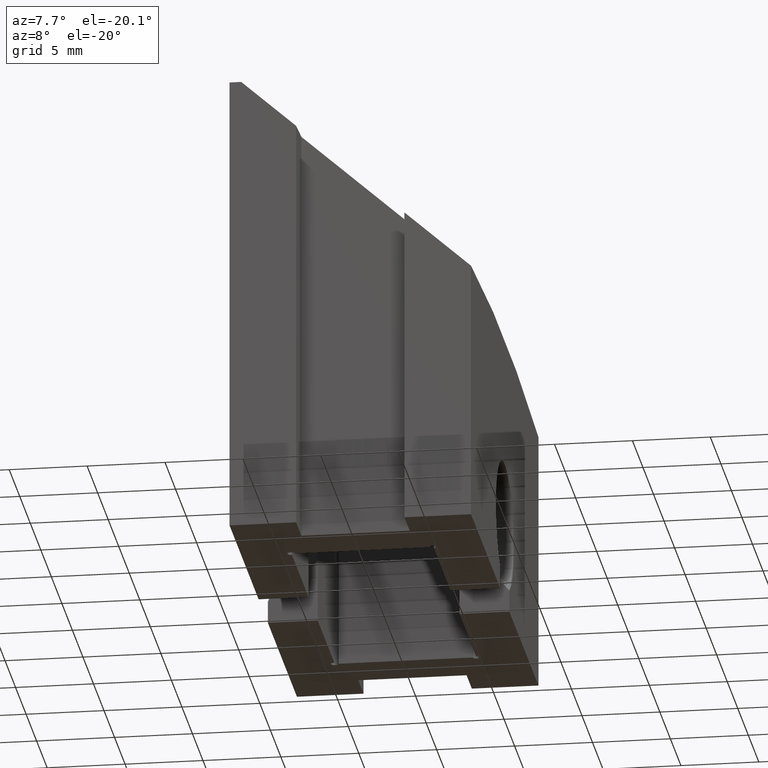
[diagram: clean part render]
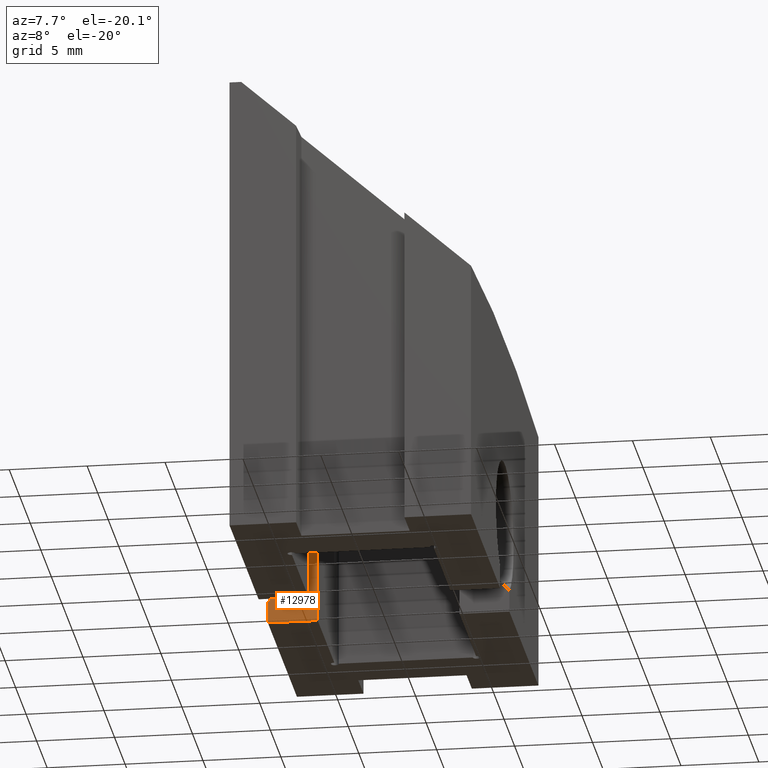
[diagram: same view with one face highlighted and labeled with its STEP entity id]
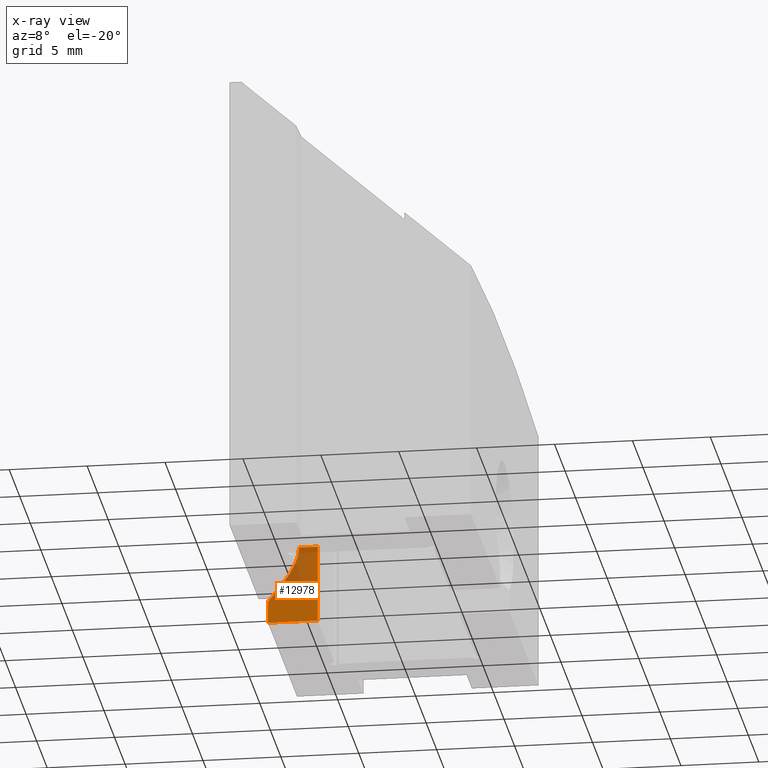
[diagram: x-ray of the same camera — body ghosted, the highlighted face saturated]
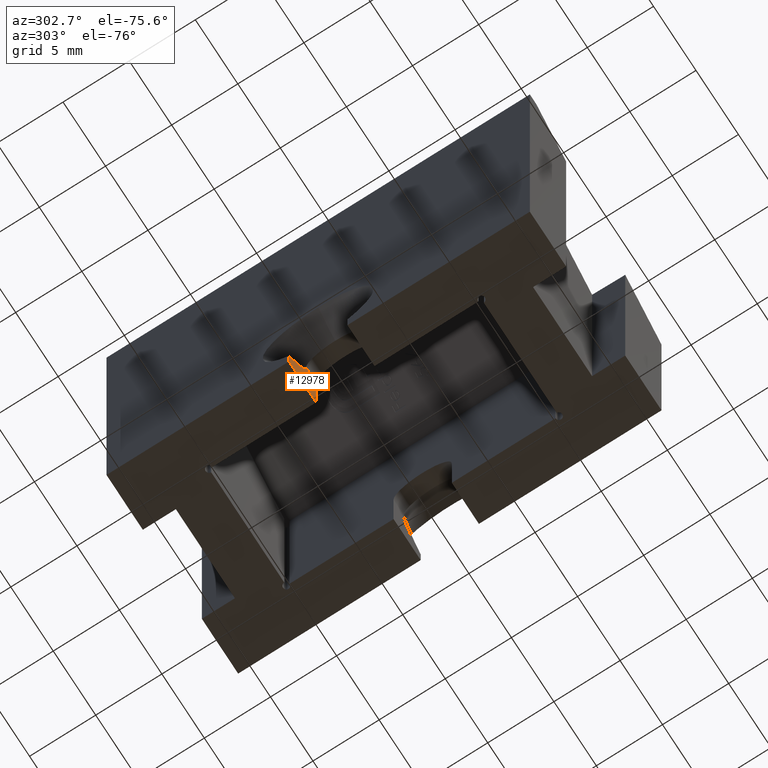
[diagram: same view with one face highlighted and labeled with its STEP entity id]
A machine part, auxiliary view. The second image highlights one B-rep face of the part: STEP entity #12978.
The next image is the same camera in x-ray: the body ghosted, the highlighted face saturated — about 36% of this face is hidden behind the body in this view.
A second angle (auxiliary view) of the same face is appended — the face is thin or edge-on in the first view.
In plain terms, the highlighted planar face has unit normal (0, 1, 0).
Its self-contained STEP definition (entity closure, byte-faithful):
#270 = LINE ( 'NONE', #3435, #6838 ) ;
#1171 = CARTESIAN_POINT ( 'NONE',  ( -7.524119801093321236, 2.200000000000000178, -13.31253993724825335 ) ) ;
#1263 = CARTESIAN_POINT ( 'NONE',  ( -6.281746870756433232, 2.200000000000000178, -11.63411363687131761 ) ) ;
#1577 = CARTESIAN_POINT ( 'NONE',  ( -7.750000000000000000, 2.200000000000000178, -15.00000000000000000 ) ) ;
#1611 = DIRECTION ( 'NONE',  ( 0.000000000000000000, 0.000000000000000000, 1.000000000000000000 ) ) ;
#1627 = VERTEX_POINT ( 'NONE', #4465 ) ;
#2494 = B_SPLINE_CURVE_WITH_KNOTS ( 'NONE', 3,
 ( #10558, #4487, #10657, #3312, #7504, #4358, #1263, #11676, #8453, #12560, #1171, #6475 ),
 .UNSPECIFIED., .F., .F.,
 ( 4, 2, 2, 2, 2, 4 ),
 ( 0.005357371165867761895, 0.005879757674851609703, 0.006402144183835458378, 0.007446917201803153127, 0.008491690219770848744, 0.009536463237738544360 ),
 .UNSPECIFIED. ) ;
#2667 = LINE ( 'NONE', #12492, #5254 ) ;
#3312 = CARTESIAN_POINT ( 'NONE',  ( -5.850878133858335772, 2.200000000000000178, -10.69424044680935992 ) ) ;
#3393 = EDGE_CURVE ( 'NONE', #4014, #13190, #2667, .T. ) ;
#3435 = CARTESIAN_POINT ( 'NONE',  ( 7.750000000000000000, 2.200000000000000178, -15.00000000000000000 ) ) ;
#3546 = EDGE_CURVE ( 'NONE', #7997, #7706, #4124, .T. ) ;
#4014 = VERTEX_POINT ( 'NONE', #12503 ) ;
#4124 = LINE ( 'NONE', #6633, #13155 ) ;
#4235 = DIRECTION ( 'NONE',  ( -0.000000000000000000, -0.000000000000000000, -1.000000000000000000 ) ) ;
#4358 = CARTESIAN_POINT ( 'NONE',  ( -6.107299071504512789, 2.200000000000000178, -11.33533589991925439 ) ) ;
#4362 = DIRECTION ( 'NONE',  ( 0.000000000000000000, -0.000000000000000000, 1.000000000000000000 ) ) ;
#4465 = CARTESIAN_POINT ( 'NONE',  ( -4.549999999999999822, 2.200000000000000178, -15.00000000000000000 ) ) ;
#4487 = CARTESIAN_POINT ( 'NONE',  ( -5.750000000000005329, 2.200000000000000178, -10.17447666026261643 ) ) ;
#4596 = DIRECTION ( 'NONE',  ( -1.000000000000000000, -0.000000000000000000, -0.000000000000000000 ) ) ;
#4614 = ORIENTED_EDGE ( 'NONE', *, *, #3393, .T. ) ;
#4991 = EDGE_CURVE ( 'NONE', #1627, #7997, #7138, .T. ) ;
#5254 = VECTOR ( 'NONE', #4235, 1000.000000000000000 ) ;
#6475 = CARTESIAN_POINT ( 'NONE',  ( -7.750000000000000000, 2.200000000000000178, -13.57770876399966831 ) ) ;
#6633 = CARTESIAN_POINT ( 'NONE',  ( 7.750000000000000000, 2.200000000000000178, -10.00000000000000178 ) ) ;
#6838 = VECTOR ( 'NONE', #7493, 1000.000000000000000 ) ;
#7043 = ORIENTED_EDGE ( 'NONE', *, *, #7242, .T. ) ;
#7138 = LINE ( 'NONE', #9924, #10390 ) ;
#7242 = EDGE_CURVE ( 'NONE', #7706, #4014, #2494, .T. ) ;
#7280 = CARTESIAN_POINT ( 'NONE',  ( 7.750000000000000000, 2.200000000000000178, -15.00000000000000000 ) ) ;
#7493 = DIRECTION ( 'NONE',  ( -1.000000000000000000, -0.000000000000000000, -0.000000000000000000 ) ) ;
#7504 = CARTESIAN_POINT ( 'NONE',  ( -5.907063001687699710, 2.200000000000000622, -10.85824346781600802 ) ) ;
#7706 = VERTEX_POINT ( 'NONE', #8483 ) ;
#7997 = VERTEX_POINT ( 'NONE', #9280 ) ;
#8158 = ORIENTED_EDGE ( 'NONE', *, *, #4991, .T. ) ;
#8185 = ORIENTED_EDGE ( 'NONE', *, *, #11213, .F. ) ;
#8251 = ORIENTED_EDGE ( 'NONE', *, *, #3546, .T. ) ;
#8421 = DIRECTION ( 'NONE',  ( 0.000000000000000000, 1.000000000000000000, 0.000000000000000000 ) ) ;
#8453 = CARTESIAN_POINT ( 'NONE',  ( -6.872674229077954777, 2.199999999999999734, -12.49584175053777280 ) ) ;
#8483 = CARTESIAN_POINT ( 'NONE',  ( -5.750000000000005329, 2.200000000000000178, -10.00000000000000178 ) ) ;
#9280 = CARTESIAN_POINT ( 'NONE',  ( -4.549999999999998934, 2.200000000000000178, -10.00000000000000178 ) ) ;
#9503 = PLANE ( 'NONE',  #12961 ) ;
#9924 = CARTESIAN_POINT ( 'NONE',  ( -4.549999999999999822, 2.200000000000000622, 15.00000000000000000 ) ) ;
#10390 = VECTOR ( 'NONE', #1611, 1000.000000000000000 ) ;
#10558 = CARTESIAN_POINT ( 'NONE',  ( -5.750000000000005329, 2.200000000000000178, -10.00000000000000178 ) ) ;
#10657 = CARTESIAN_POINT ( 'NONE',  ( -5.771499848068248895, 2.199999999999999734, -10.35070099242205899 ) ) ;
#11186 = FACE_OUTER_BOUND ( 'NONE', #12439, .T. ) ;
#11213 = EDGE_CURVE ( 'NONE', #1627, #13190, #270, .T. ) ;
#11676 = CARTESIAN_POINT ( 'NONE',  ( -6.664674798397745015, 2.199999999999999734, -12.21564561969988461 ) ) ;
#12439 = EDGE_LOOP ( 'NONE', ( #8158, #8251, #7043, #4614, #8185 ) ) ;
#12492 = CARTESIAN_POINT ( 'NONE',  ( -7.750000000000000000, 2.200000000000000178, -15.00000000000000000 ) ) ;
#12503 = CARTESIAN_POINT ( 'NONE',  ( -7.750000000000000000, 2.200000000000000178, -13.57770876399966831 ) ) ;
#12560 = CARTESIAN_POINT ( 'NONE',  ( -7.301954824841295988, 2.200000000000000622, -13.04404780166126265 ) ) ;
#12961 = AXIS2_PLACEMENT_3D ( 'NONE', #7280, #8421, #4362 ) ;
#12978 = ADVANCED_FACE ( 'NONE', ( #11186 ), #9503, .F. ) ;
#13155 = VECTOR ( 'NONE', #4596, 1000.000000000000000 ) ;
#13190 = VERTEX_POINT ( 'NONE', #1577 ) ;